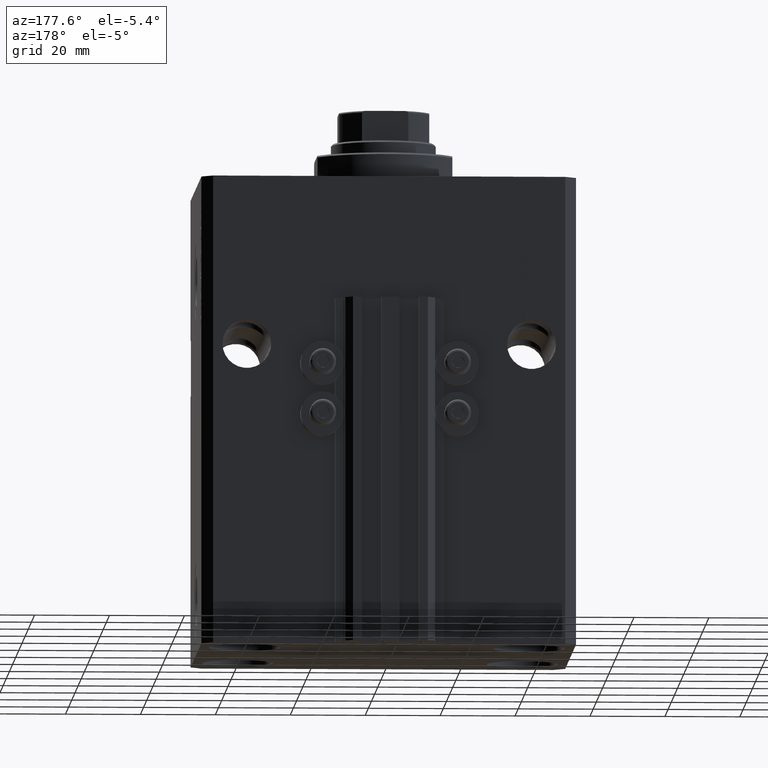
[diagram: clean part render]
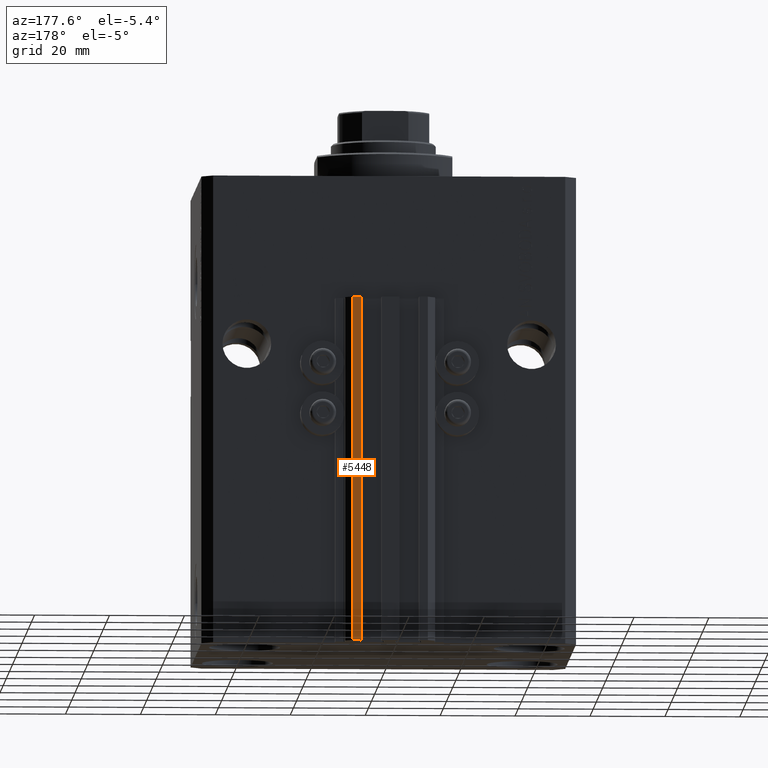
[diagram: same view with one face highlighted and labeled with its STEP entity id]
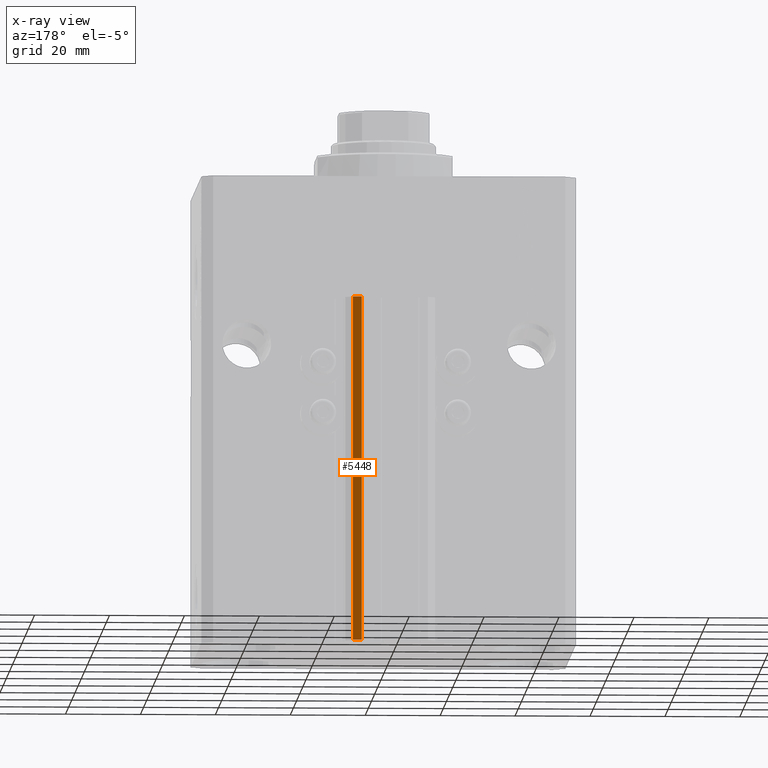
[diagram: x-ray of the same camera — body ghosted, the highlighted face saturated]
A machine part, auxiliary view. The second image highlights one B-rep face of the part: STEP entity #5448.
The next image is the same camera in x-ray: the body ghosted, the highlighted face saturated — about 0% of this face is hidden behind the body in this view.
In plain terms, the highlighted planar face has unit normal (0, 1, 0).
Its self-contained STEP definition (entity closure, byte-faithful):
#2023 = EDGE_CURVE ( 'NONE', #15113, #16235, #7953, .T. ) ;
#2210 = LINE ( 'NONE', #35722, #19310 ) ;
#2227 = ORIENTED_EDGE ( 'NONE', *, *, #36363, .T. ) ;
#3717 = ORIENTED_EDGE ( 'NONE', *, *, #2023, .F. ) ;
#5448 = ADVANCED_FACE ( 'NONE', ( #43372 ), #31795, .T. ) ;
#7686 = CARTESIAN_POINT ( 'NONE',  ( 9.999999999999998224, 45.50000000000002842, -33.00000000000000000 ) ) ;
#7696 = CARTESIAN_POINT ( 'NONE',  ( 7.649999999999998579, 45.50000000000002842, -33.00000000000000000 ) ) ;
#7953 = LINE ( 'NONE', #19030, #12274 ) ;
#10125 = DIRECTION ( 'NONE',  ( 0.000000000000000000, 0.000000000000000000, 1.000000000000000000 ) ) ;
#12274 = VECTOR ( 'NONE', #31079, 1000.000000000000000 ) ;
#12662 = VERTEX_POINT ( 'NONE', #30612 ) ;
#15113 = VERTEX_POINT ( 'NONE', #7686 ) ;
#16235 = VERTEX_POINT ( 'NONE', #7696 ) ;
#17757 = VERTEX_POINT ( 'NONE', #40493 ) ;
#17834 = CARTESIAN_POINT ( 'NONE',  ( 9.999999999999998224, 45.50000000000002842, -125.0000000000000000 ) ) ;
#19030 = CARTESIAN_POINT ( 'NONE',  ( 9.999999999999998224, 45.50000000000002842, -33.00000000000000000 ) ) ;
#19310 = VECTOR ( 'NONE', #39100, 1000.000000000000000 ) ;
#23519 = VECTOR ( 'NONE', #29311, 1000.000000000000000 ) ;
#24551 = DIRECTION ( 'NONE',  ( 0.000000000000000000, 1.000000000000000000, -0.000000000000000000 ) ) ;
#25494 = CARTESIAN_POINT ( 'NONE',  ( 9.999999999999998224, 45.50000000000002842, -125.0000000000000000 ) ) ;
#25913 = LINE ( 'NONE', #33161, #23519 ) ;
#26216 = ORIENTED_EDGE ( 'NONE', *, *, #47449, .T. ) ;
#28979 = EDGE_CURVE ( 'NONE', #12662, #15113, #47256, .T. ) ;
#29311 = DIRECTION ( 'NONE',  ( -1.000000000000000000, 0.000000000000000000, 0.000000000000000000 ) ) ;
#30612 = CARTESIAN_POINT ( 'NONE',  ( 9.999999999999998224, 45.50000000000002842, -125.0000000000000000 ) ) ;
#31079 = DIRECTION ( 'NONE',  ( -1.000000000000000000, 0.000000000000000000, 0.000000000000000000 ) ) ;
#31795 = PLANE ( 'NONE',  #34722 ) ;
#33161 = CARTESIAN_POINT ( 'NONE',  ( 9.999999999999998224, 45.50000000000002842, -125.0000000000000000 ) ) ;
#34722 = AXIS2_PLACEMENT_3D ( 'NONE', #25494, #24551, #43127 ) ;
#35722 = CARTESIAN_POINT ( 'NONE',  ( 7.649999999999998579, 45.50000000000002842, -125.0000000000000000 ) ) ;
#36363 = EDGE_CURVE ( 'NONE', #17757, #16235, #2210, .T. ) ;
#39100 = DIRECTION ( 'NONE',  ( 0.000000000000000000, 0.000000000000000000, 1.000000000000000000 ) ) ;
#39994 = VECTOR ( 'NONE', #10125, 1000.000000000000000 ) ;
#40493 = CARTESIAN_POINT ( 'NONE',  ( 7.649999999999998579, 45.50000000000002842, -125.0000000000000000 ) ) ;
#43127 = DIRECTION ( 'NONE',  ( 0.000000000000000000, 0.000000000000000000, 1.000000000000000000 ) ) ;
#43343 = EDGE_LOOP ( 'NONE', ( #3717, #44250, #26216, #2227 ) ) ;
#43372 = FACE_OUTER_BOUND ( 'NONE', #43343, .T. ) ;
#44250 = ORIENTED_EDGE ( 'NONE', *, *, #28979, .F. ) ;
#47256 = LINE ( 'NONE', #17834, #39994 ) ;
#47449 = EDGE_CURVE ( 'NONE', #12662, #17757, #25913, .T. ) ;